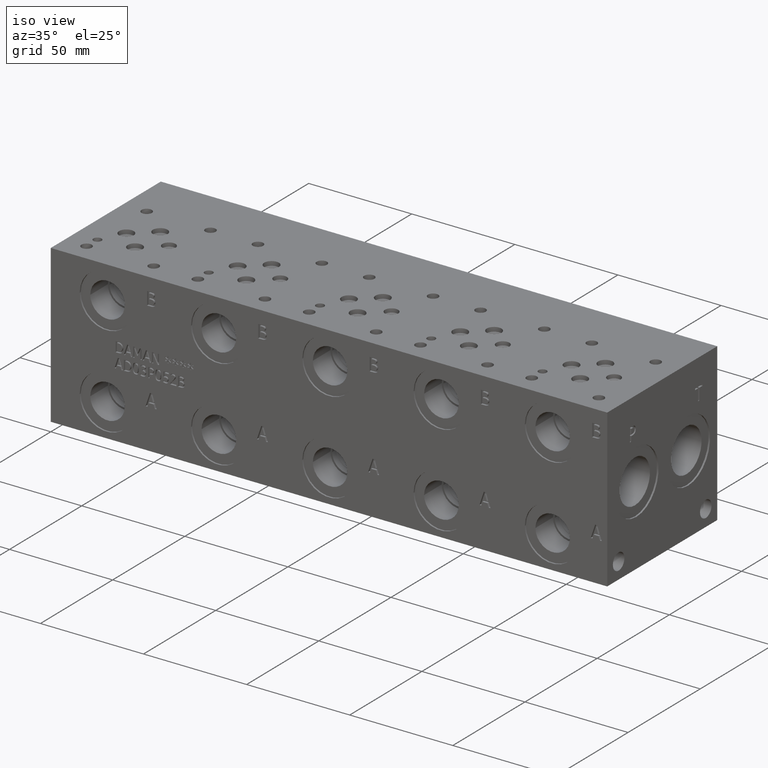
[diagram: clean part render]
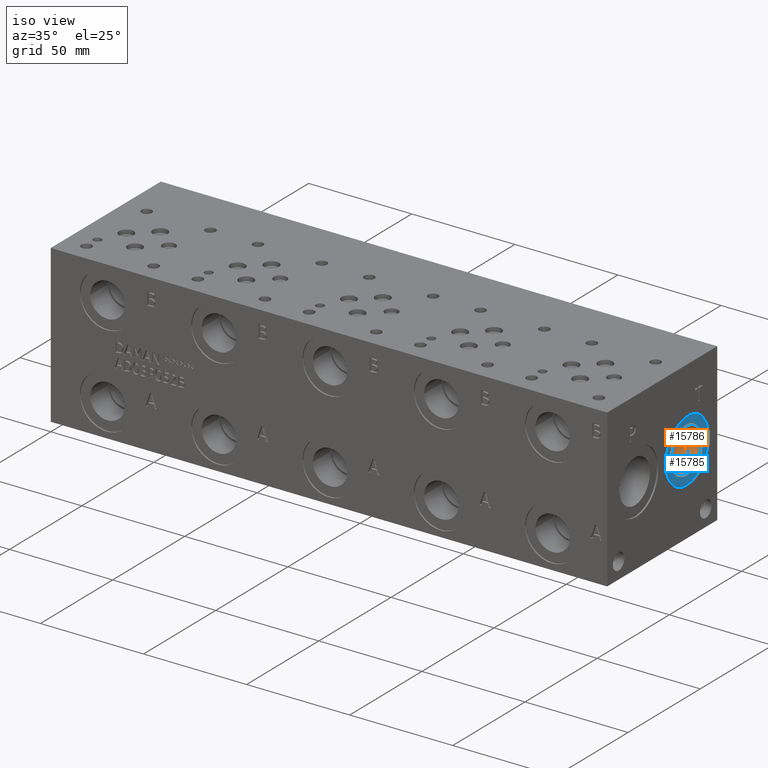
[diagram: same view with the hole feature highlighted: cylindrical wall and planar end face, labeled with their STEP entity ids]
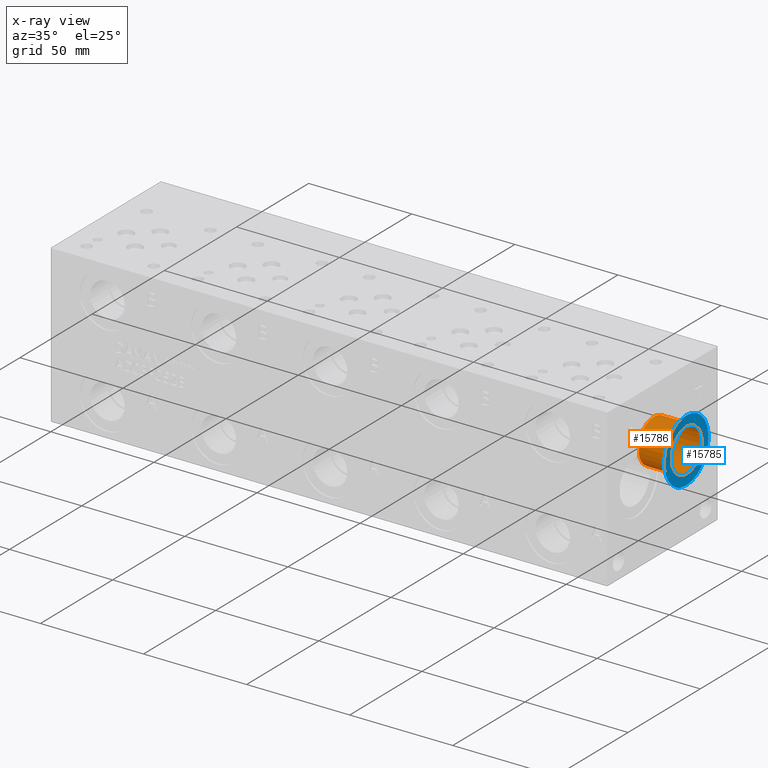
[diagram: x-ray of the same camera — body ghosted, the hole faces saturated]
A machine part, iso view. The highlighted faces form one hole feature of diameter 21.0566 mm: the cylindrical wall (entity #15786, orange) and its adjacent planar end face (entity #15785, blue) — they share a circular edge in the B-rep.
The next image is the same camera in x-ray (body ghosted, the hole faces saturated) — the bore reads through the body.
Wall:
#24=CYLINDRICAL_SURFACE('',#16507,10.5283);
#286=CIRCLE('',#16505,10.5283);
#287=CIRCLE('',#16506,10.5283);
#288=CIRCLE('',#16508,10.5283);
#289=CIRCLE('',#16509,10.5283);
#1895=FACE_OUTER_BOUND('',#2807,.T.);
#2807=EDGE_LOOP('',(#13194,#13195,#13196,#13197,#13198,#13199));
#4307=LINE('',#26546,#5664);
#5664=VECTOR('',#19259,10.5283);
#7331=VERTEX_POINT('',#26540);
#7332=VERTEX_POINT('',#26541);
#7333=VERTEX_POINT('',#26545);
#7334=VERTEX_POINT('',#26547);
#9418=EDGE_CURVE('',#7331,#7332,#286,.T.);
#9419=EDGE_CURVE('',#7332,#7331,#287,.T.);
#9420=EDGE_CURVE('',#7332,#7333,#4307,.T.);
#9421=EDGE_CURVE('',#7333,#7334,#288,.T.);
#9422=EDGE_CURVE('',#7334,#7333,#289,.T.);
#13194=ORIENTED_EDGE('',*,*,#9418,.F.);
#13195=ORIENTED_EDGE('',*,*,#9419,.F.);
#13196=ORIENTED_EDGE('',*,*,#9420,.T.);
#13197=ORIENTED_EDGE('',*,*,#9421,.T.);
#13198=ORIENTED_EDGE('',*,*,#9422,.T.);
#13199=ORIENTED_EDGE('',*,*,#9420,.F.);
#15786=ADVANCED_FACE('',(#1895),#24,.F.);
#16505=AXIS2_PLACEMENT_3D('',#26542,#19253,#19254);
#16506=AXIS2_PLACEMENT_3D('',#26543,#19255,#19256);
#16507=AXIS2_PLACEMENT_3D('',#26544,#19257,#19258);
#16508=AXIS2_PLACEMENT_3D('',#26548,#19260,#19261);
#16509=AXIS2_PLACEMENT_3D('',#26549,#19262,#19263);
#19253=DIRECTION('center_axis',(-1.,0.,0.));
#19254=DIRECTION('ref_axis',(0.,0.,1.));
#19255=DIRECTION('center_axis',(-1.,0.,0.));
#19256=DIRECTION('ref_axis',(0.,0.,1.));
#19257=DIRECTION('center_axis',(-1.,0.,0.));
#19258=DIRECTION('ref_axis',(0.,0.,-1.));
#19259=DIRECTION('',(-1.,0.,0.));
#19260=DIRECTION('center_axis',(-1.,0.,0.));
#19261=DIRECTION('ref_axis',(0.,0.,1.));
#19262=DIRECTION('center_axis',(-1.,0.,0.));
#19263=DIRECTION('ref_axis',(0.,0.,1.));
#26540=CARTESIAN_POINT('',(269.0876,55.9562,27.5717));
#26541=CARTESIAN_POINT('',(269.0876,55.9562,48.6283));
#26542=CARTESIAN_POINT('Origin',(269.0876,55.9562,38.1));
#26543=CARTESIAN_POINT('Origin',(269.0876,55.9562,38.1));
#26544=CARTESIAN_POINT('Origin',(261.1882,55.9562,38.1));
#26545=CARTESIAN_POINT('',(253.2888,55.9562,48.6283));
#26546=CARTESIAN_POINT('',(261.1882,55.9562,48.6283));
#26547=CARTESIAN_POINT('',(253.2888,55.9562,27.5717));
#26548=CARTESIAN_POINT('Origin',(253.2888,55.9562,38.1));
#26549=CARTESIAN_POINT('Origin',(253.2888,55.9562,38.1));
End face:
#284=CIRCLE('',#16502,15.3416);
#285=CIRCLE('',#16503,15.3416);
#286=CIRCLE('',#16505,10.5283);
#287=CIRCLE('',#16506,10.5283);
#783=FACE_BOUND('',#2806,.T.);
#1255=PLANE('',#16504);
#1894=FACE_OUTER_BOUND('',#2805,.T.);
#2805=EDGE_LOOP('',(#13190,#13191));
#2806=EDGE_LOOP('',(#13192,#13193));
#7329=VERTEX_POINT('',#26534);
#7330=VERTEX_POINT('',#26536);
#7331=VERTEX_POINT('',#26540);
#7332=VERTEX_POINT('',#26541);
#9416=EDGE_CURVE('',#7329,#7330,#284,.T.);
#9417=EDGE_CURVE('',#7330,#7329,#285,.T.);
#9418=EDGE_CURVE('',#7331,#7332,#286,.T.);
#9419=EDGE_CURVE('',#7332,#7331,#287,.T.);
#13190=ORIENTED_EDGE('',*,*,#9417,.F.);
#13191=ORIENTED_EDGE('',*,*,#9416,.F.);
#13192=ORIENTED_EDGE('',*,*,#9418,.T.);
#13193=ORIENTED_EDGE('',*,*,#9419,.T.);
#15785=ADVANCED_FACE('',(#1894,#783),#1255,.F.);
#16502=AXIS2_PLACEMENT_3D('',#26537,#19247,#19248);
#16503=AXIS2_PLACEMENT_3D('',#26538,#19249,#19250);
#16504=AXIS2_PLACEMENT_3D('',#26539,#19251,#19252);
#16505=AXIS2_PLACEMENT_3D('',#26542,#19253,#19254);
#16506=AXIS2_PLACEMENT_3D('',#26543,#19255,#19256);
#19247=DIRECTION('center_axis',(-1.,0.,0.));
#19248=DIRECTION('ref_axis',(0.,0.,1.));
#19249=DIRECTION('center_axis',(-1.,0.,0.));
#19250=DIRECTION('ref_axis',(0.,0.,1.));
#19251=DIRECTION('center_axis',(-1.,0.,0.));
#19252=DIRECTION('ref_axis',(0.,0.,1.));
#19253=DIRECTION('center_axis',(-1.,0.,0.));
#19254=DIRECTION('ref_axis',(0.,0.,1.));
#19255=DIRECTION('center_axis',(-1.,0.,0.));
#19256=DIRECTION('ref_axis',(0.,0.,1.));
#26534=CARTESIAN_POINT('',(269.0876,55.9562,53.4416));
#26536=CARTESIAN_POINT('',(269.0876,55.9562,22.7584));
#26537=CARTESIAN_POINT('Origin',(269.0876,55.9562,38.1));
#26538=CARTESIAN_POINT('Origin',(269.0876,55.9562,38.1));
#26539=CARTESIAN_POINT('Origin',(269.0876,55.9562,27.5717));
#26540=CARTESIAN_POINT('',(269.0876,55.9562,27.5717));
#26541=CARTESIAN_POINT('',(269.0876,55.9562,48.6283));
#26542=CARTESIAN_POINT('Origin',(269.0876,55.9562,38.1));
#26543=CARTESIAN_POINT('Origin',(269.0876,55.9562,38.1));